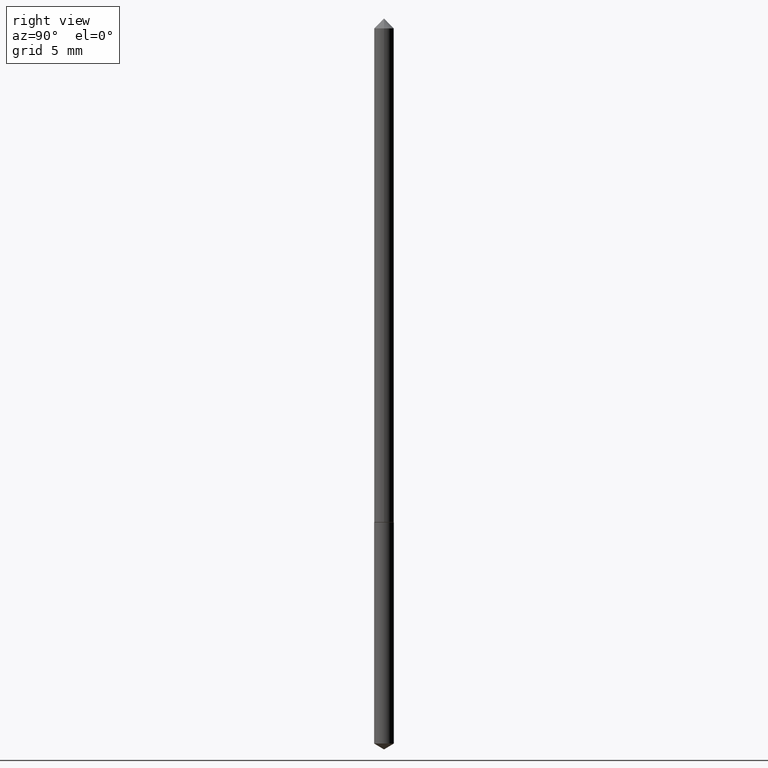
[diagram: clean part render]
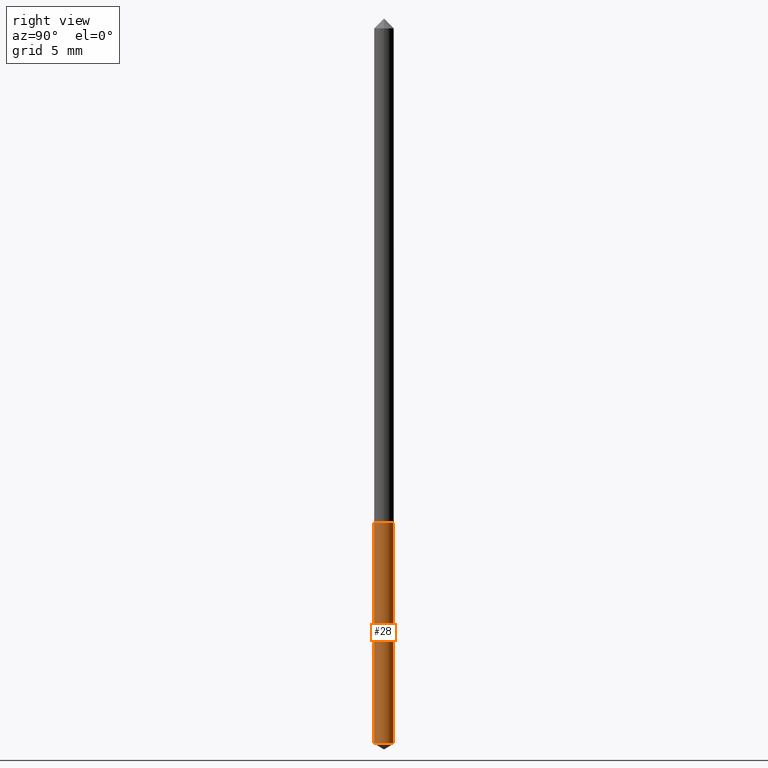
[diagram: same view with one face highlighted and labeled with its STEP entity id]
A machine part, right view. The second image highlights one B-rep face of the part: STEP entity #28.
In plain terms, the highlighted cylindrical surface (edge-blend (fillet) strip) has radius 0.4 mm, axis along (-0, 0, 1).
Its self-contained STEP definition (entity closure, byte-faithful):
#4 = CARTESIAN_POINT ( 'NONE',  ( 2.002594405385008597E-29, -2.859174068378652141E-15, -0.8189000000000000723 ) ) ;
#5 = CARTESIAN_POINT ( 'NONE',  ( 1.119104808822357974E-16, 0.01574999999999714129, -0.8189000000000000723 ) ) ;
#13 = DIRECTION ( 'NONE',  ( -2.445460975394057853E-29, 3.491492552981671562E-15, 1.000000000000000000 ) ) ;
#16 = VERTEX_POINT ( 'NONE', #130 ) ;
#28 = ADVANCED_FACE ( 'NONE', ( #158 ), #245, .T. ) ;
#64 = EDGE_CURVE ( 'NONE', #248, #73, #228, .T. ) ;
#66 = ORIENTED_EDGE ( 'NONE', *, *, #64, .T. ) ;
#73 = VERTEX_POINT ( 'NONE', #227 ) ;
#76 = ORIENTED_EDGE ( 'NONE', *, *, #336, .F. ) ;
#81 = VERTEX_POINT ( 'NONE', #265 ) ;
#91 = DIRECTION ( 'NONE',  ( -2.445460975394057853E-29, 3.491492552981671562E-15, 1.000000000000000000 ) ) ;
#109 = DIRECTION ( 'NONE',  ( -2.445460975394057853E-29, 3.491492552981671562E-15, 1.000000000000000000 ) ) ;
#130 = CARTESIAN_POINT ( 'NONE',  ( -1.099816621735300606E-16, -0.01575000000000409406, -1.171636445250315628 ) ) ;
#144 = AXIS2_PLACEMENT_3D ( 'NONE', #351, #273, #275 ) ;
#158 = FACE_OUTER_BOUND ( 'NONE', #250, .T. ) ;
#167 = DIRECTION ( 'NONE',  ( -2.445460975394057853E-29, 3.491492552981671562E-15, 1.000000000000000000 ) ) ;
#171 = EDGE_CURVE ( 'NONE', #16, #248, #301, .T. ) ;
#193 = LINE ( 'NONE', #263, #342 ) ;
#196 = CARTESIAN_POINT ( 'NONE',  ( 1.119104808822444256E-16, 0.01574999999999591310, -1.171636445250315628 ) ) ;
#201 = DIRECTION ( 'NONE',  ( -6.982962677686265922E-15, -1.000000000000000000, 0.000000000000000000 ) ) ;
#206 = VECTOR ( 'NONE', #109, 39.37007874015748143 ) ;
#221 = EDGE_CURVE ( 'NONE', #16, #81, #193, .T. ) ;
#227 = CARTESIAN_POINT ( 'NONE',  ( 1.119104808822444749E-16, 0.01574999999999714129, -0.8189000000000000723 ) ) ;
#228 = LINE ( 'NONE', #5, #206 ) ;
#239 = DIRECTION ( 'NONE',  ( -6.982962677686265922E-15, -1.000000000000000000, 0.000000000000000000 ) ) ;
#245 = CYLINDRICAL_SURFACE ( 'NONE', #316, 0.01575000000000000011 ) ;
#248 = VERTEX_POINT ( 'NONE', #196 ) ;
#250 = EDGE_LOOP ( 'NONE', ( #355, #66, #76, #345 ) ) ;
#263 = CARTESIAN_POINT ( 'NONE',  ( -1.099816621735386641E-16, -0.01575000000000285894, -0.8189000000000000723 ) ) ;
#265 = CARTESIAN_POINT ( 'NONE',  ( -1.099816621735386641E-16, -0.01575000000000285894, -0.8189000000000000723 ) ) ;
#273 = DIRECTION ( 'NONE',  ( -2.445460975394057853E-29, 3.491492552981671562E-15, 1.000000000000000000 ) ) ;
#275 = DIRECTION ( 'NONE',  ( -6.982962677686265922E-15, -1.000000000000000000, 0.000000000000000000 ) ) ;
#290 = AXIS2_PLACEMENT_3D ( 'NONE', #348, #91, #201 ) ;
#301 = CIRCLE ( 'NONE', #290, 0.01575000000000000011 ) ;
#306 = CIRCLE ( 'NONE', #144, 0.01575000000000000011 ) ;
#316 = AXIS2_PLACEMENT_3D ( 'NONE', #4, #13, #239 ) ;
#336 = EDGE_CURVE ( 'NONE', #81, #73, #306, .T. ) ;
#342 = VECTOR ( 'NONE', #167, 39.37007874015748143 ) ;
#345 = ORIENTED_EDGE ( 'NONE', *, *, #221, .F. ) ;
#348 = CARTESIAN_POINT ( 'NONE',  ( 2.865197616843877602E-29, -4.090750740135355442E-15, -1.171636445250315628 ) ) ;
#351 = CARTESIAN_POINT ( 'NONE',  ( 2.002594405385008597E-29, -2.859174068378652141E-15, -0.8189000000000000723 ) ) ;
#355 = ORIENTED_EDGE ( 'NONE', *, *, #171, .T. ) ;